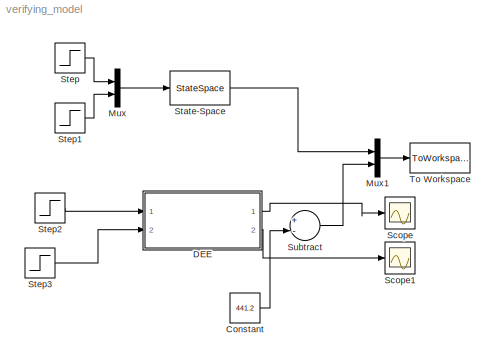
MODEL verifying_model
KIND model
BLOCK [Constant] Constant
  SID = 24
  Value = 441.2
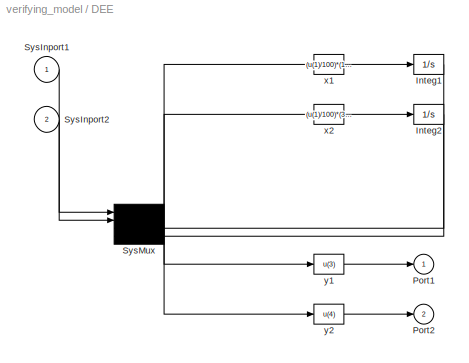
BLOCK [SubSystem] DEE
  OpenFcn = diffeqed
  Ports = [2, 2]
  RequestExecContextInheritance = off
  SID = 32
BLOCK [Integrator] DEE/Integ1
  InitialCondition = 0.07
  Ports = [1, 1]
  SID = 35
BLOCK [Integrator] DEE/Integ2
  InitialCondition = 445.3
  Ports = [1, 1]
  SID = 36
BLOCK [Outport] DEE/Port1
  IconDisplay = Port number
  SID = 42
BLOCK [Outport] DEE/Port2
  IconDisplay = Port number
  Port = 2
  SID = 43
BLOCK [Inport] DEE/SysInport1
  IconDisplay = Port number
  SID = 33
BLOCK [Inport] DEE/SysInport2
  IconDisplay = Port number
  Port = 2
  SID = 34
BLOCK [Mux] DEE/SysMux
  Ports = [4, 1]
  SID = 37
BLOCK [Fcn] DEE/x1
  Expr = (u(1)/100)*(1-u(3))-(7.2*10^10)*u(3)*exp(-(10^4)/u(4))
  SID = 38
BLOCK [Fcn] DEE/x2
  Expr = (u(1)/100)*(350-u(4))-((-(2*10^5)/(10^3))*(7.2*10^10)*u(3)*exp(-(10^4)/u(4)))+(((10^3)*1)/((10^3)*100))*(u(2))*(1-exp(-(7*10^5)/(u(2)*(10^3)*1)))*(350-u(4))
  SID = 39
BLOCK [Fcn] DEE/y1
  Expr = u(3)
  SID = 40
BLOCK [Fcn] DEE/y2
  Expr = u(4)
  SID = 41
BLOCK [Mux] Mux
  DisplayOption = bar
  Inputs = 2
  Ports = [2, 1]
  SID = 15
BLOCK [Mux] Mux1
  DisplayOption = bar
  Inputs = 2
  Ports = [2, 1]
  SID = 25
BLOCK [Scope] Scope
  Floating = off
  NumInputPorts = 1
  Ports = [1]
  SID = 28
  ZoomMode = yonly
BLOCK [Scope] Scope1
  Floating = off
  NumInputPorts = 1
  Ports = [1]
  SID = 31
  SaveName = ScopeData1
  ZoomMode = yonly
BLOCK [StateSpace] State-Space
  A = [-11.324 0; -2064.8 -11.4]
  B = [0.0091 0; -0.912 -0.9053]
  C = [0 1]
  D = [0 0]
  Ports = [1, 1]
  SID = 13
  X0 = 0
BLOCK [Step] Step
  After = 10
  SID = 14
  SampleTime = 0
BLOCK [Step] Step1
  After = 10
  SID = 16
  SampleTime = 0
  Time = 0
BLOCK [Step] Step2
  After = 100
  SID = 17
  SampleTime = 0
BLOCK [Step] Step3
  After = 97
  SID = 18
  SampleTime = 0
BLOCK [Sum] Subtract
  InputSameDT = off
  Inputs = +-
  OutDataTypeStr = Inherit: Inherit via internal rule
  Ports = [2, 1]
  SID = 23
  SaturateOnIntegerOverflow = off
BLOCK [ToWorkspace] To Workspace
  FixptAsFi = on
  MaxDataPoints = inf
  Ports = [1]
  SID = 26
  SampleTime = -1
  Save2DSignal = 3-D array (concatenate along third dimension)
  SaveFormat = Structure With Time
  VariableName = out
LINE Constant:1 -> Subtract:2
LINE DEE/Integ1:1 -> DEE/SysMux:3
LINE DEE/Integ2:1 -> DEE/SysMux:4
LINE DEE/SysInport1:1 -> DEE/SysMux:1
LINE DEE/SysInport2:1 -> DEE/SysMux:2
NET DEE/SysMux:1 -> DEE/x1:1, DEE/x2:1, DEE/y1:1, DEE/y2:1
LINE DEE/x1:1 -> DEE/Integ1:1
LINE DEE/x2:1 -> DEE/Integ2:1
LINE DEE/y1:1 -> DEE/Port1:1
LINE DEE/y2:1 -> DEE/Port2:1
LINE DEE:1 -> Scope:1
LINE DEE:2 -> Scope1:1
LINE Mux1:1 -> To Workspace:1
LINE Mux:1 -> State-Space:1
LINE State-Space:1 -> Mux1:1
LINE Step1:1 -> Mux:2
LINE Step2:1 -> DEE:1
LINE Step3:1 -> DEE:2
LINE Step:1 -> Mux:1
LINE Subtract:1 -> Mux1:2
note: NET lines group one-source signal fan-out (src -> all destinations, sorted); 1:1 wires keep LINE
